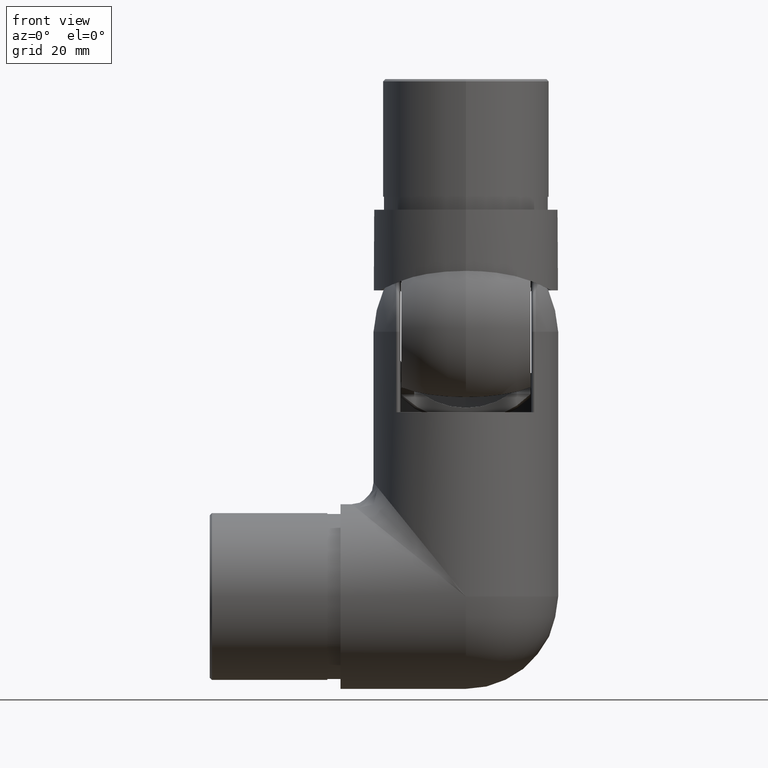
[diagram: clean part render]
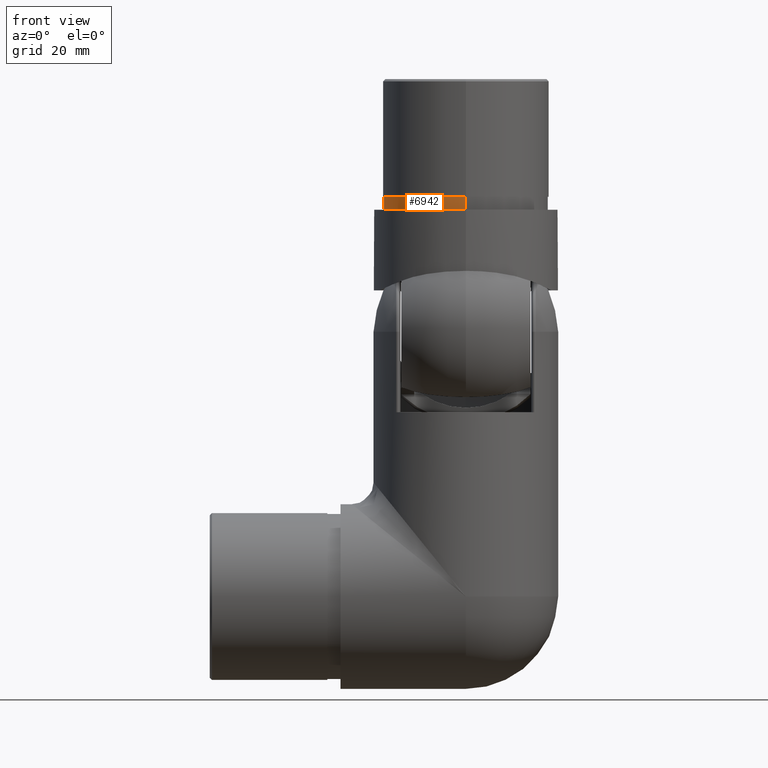
[diagram: same view with one face highlighted and labeled with its STEP entity id]
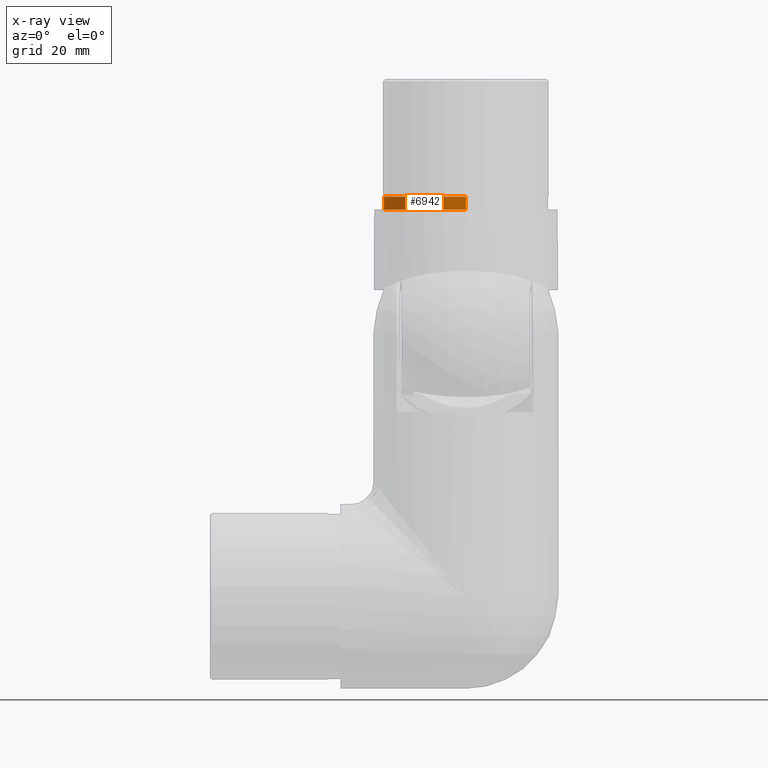
[diagram: x-ray of the same camera — body ghosted, the highlighted face saturated]
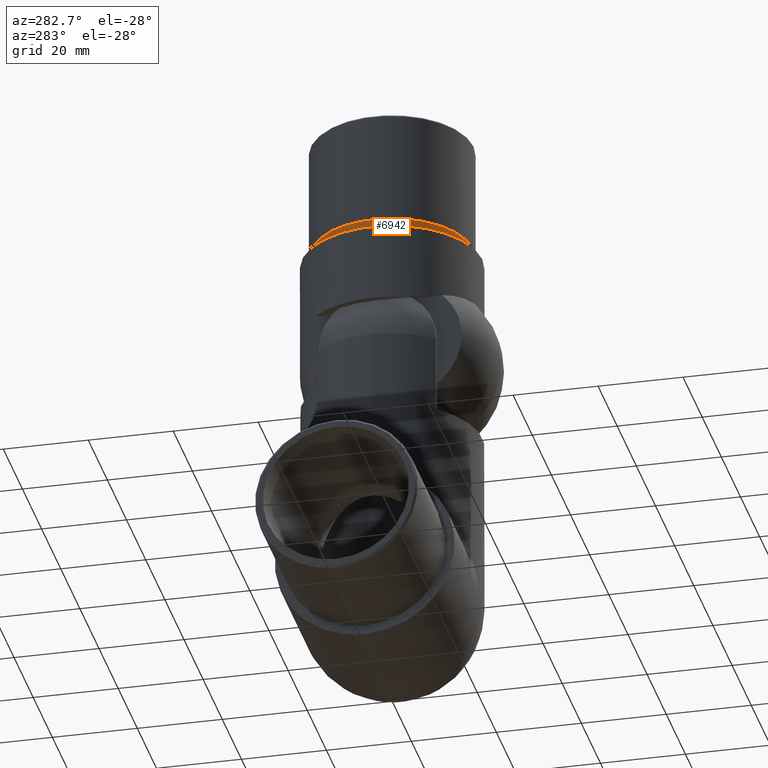
[diagram: same view with one face highlighted and labeled with its STEP entity id]
A machine part, front view. The second image highlights one B-rep face of the part: STEP entity #6942.
The next image is the same camera in x-ray: the body ghosted, the highlighted face saturated — about 0% of this face is hidden behind the body in this view.
A second angle (auxiliary view) of the same face is appended — the face is thin or edge-on in the first view.
In plain terms, the highlighted cylindrical surface (partial cylindrical patch) has radius 18.95 mm, axis along (0, 0, -1).
Its self-contained STEP definition (entity closure, byte-faithful):
#255 = CARTESIAN_POINT ( 'NONE',  ( 0.000000000000000000, 27.00000000000000000, 18.94999999999999929 ) ) ;
#1330 = ORIENTED_EDGE ( 'NONE', *, *, #7052, .F. ) ;
#1551 = VECTOR ( 'NONE', #15914, 1000.000000000000000 ) ;
#2162 = DIRECTION ( 'NONE',  ( 0.000000000000000000, 0.000000000000000000, -1.000000000000000000 ) ) ;
#2748 = EDGE_LOOP ( 'NONE', ( #11058, #19969, #10951, #1330 ) ) ;
#2755 = AXIS2_PLACEMENT_3D ( 'NONE', #19330, #9074, #2162 ) ;
#3089 = CARTESIAN_POINT ( 'NONE',  ( 0.000000000000000000, 30.00000000000000000, 0.000000000000000000 ) ) ;
#3533 = CARTESIAN_POINT ( 'NONE',  ( 2.320705684384234292E-15, 27.00000000000000000, -18.94999999999999929 ) ) ;
#4580 = LINE ( 'NONE', #11431, #11447 ) ;
#4824 = CARTESIAN_POINT ( 'NONE',  ( 2.320705684384234292E-15, 30.00000000000000000, -18.94999999999999929 ) ) ;
#5567 = FACE_OUTER_BOUND ( 'NONE', #2748, .T. ) ;
#6535 = DIRECTION ( 'NONE',  ( -0.000000000000000000, -1.000000000000000000, -0.000000000000000000 ) ) ;
#6942 = ADVANCED_FACE ( 'NONE', ( #5567 ), #18654, .T. ) ;
#7052 = EDGE_CURVE ( 'NONE', #15412, #13256, #15728, .T. ) ;
#7890 = DIRECTION ( 'NONE',  ( -0.000000000000000000, 1.000000000000000000, -0.000000000000000000 ) ) ;
#8130 = VERTEX_POINT ( 'NONE', #4824 ) ;
#8251 = DIRECTION ( 'NONE',  ( -0.000000000000000000, 1.000000000000000000, -0.000000000000000000 ) ) ;
#8559 = CIRCLE ( 'NONE', #18896, 18.94999999999999929 ) ;
#9074 = DIRECTION ( 'NONE',  ( 0.000000000000000000, -1.000000000000000000, 0.000000000000000000 ) ) ;
#9960 = CARTESIAN_POINT ( 'NONE',  ( 0.000000000000000000, 27.00000000000000000, 0.000000000000000000 ) ) ;
#10951 = ORIENTED_EDGE ( 'NONE', *, *, #15270, .T. ) ;
#11058 = ORIENTED_EDGE ( 'NONE', *, *, #16058, .F. ) ;
#11431 = CARTESIAN_POINT ( 'NONE',  ( 2.320705684384234292E-15, 27.00000000000000000, -18.94999999999999929 ) ) ;
#11447 = VECTOR ( 'NONE', #7890, 1000.000000000000000 ) ;
#13256 = VERTEX_POINT ( 'NONE', #16295 ) ;
#13520 = DIRECTION ( 'NONE',  ( 0.000000000000000000, 0.000000000000000000, 1.000000000000000000 ) ) ;
#15270 = EDGE_CURVE ( 'NONE', #8130, #13256, #8559, .T. ) ;
#15326 = VERTEX_POINT ( 'NONE', #3533 ) ;
#15412 = VERTEX_POINT ( 'NONE', #255 ) ;
#15728 = LINE ( 'NONE', #16071, #1551 ) ;
#15914 = DIRECTION ( 'NONE',  ( -0.000000000000000000, 1.000000000000000000, -0.000000000000000000 ) ) ;
#16058 = EDGE_CURVE ( 'NONE', #15326, #15412, #18730, .T. ) ;
#16071 = CARTESIAN_POINT ( 'NONE',  ( 0.000000000000000000, 27.00000000000000000, 18.94999999999999929 ) ) ;
#16295 = CARTESIAN_POINT ( 'NONE',  ( 0.000000000000000000, 30.00000000000000000, 18.94999999999999929 ) ) ;
#18376 = AXIS2_PLACEMENT_3D ( 'NONE', #9960, #8251, #21953 ) ;
#18654 = CYLINDRICAL_SURFACE ( 'NONE', #18376, 18.94999999999999929 ) ;
#18730 = CIRCLE ( 'NONE', #2755, 18.94999999999999929 ) ;
#18896 = AXIS2_PLACEMENT_3D ( 'NONE', #3089, #6535, #13520 ) ;
#19330 = CARTESIAN_POINT ( 'NONE',  ( 0.000000000000000000, 27.00000000000000000, 0.000000000000000000 ) ) ;
#19969 = ORIENTED_EDGE ( 'NONE', *, *, #21792, .T. ) ;
#21792 = EDGE_CURVE ( 'NONE', #15326, #8130, #4580, .T. ) ;
#21953 = DIRECTION ( 'NONE',  ( 0.000000000000000000, 0.000000000000000000, 1.000000000000000000 ) ) ;